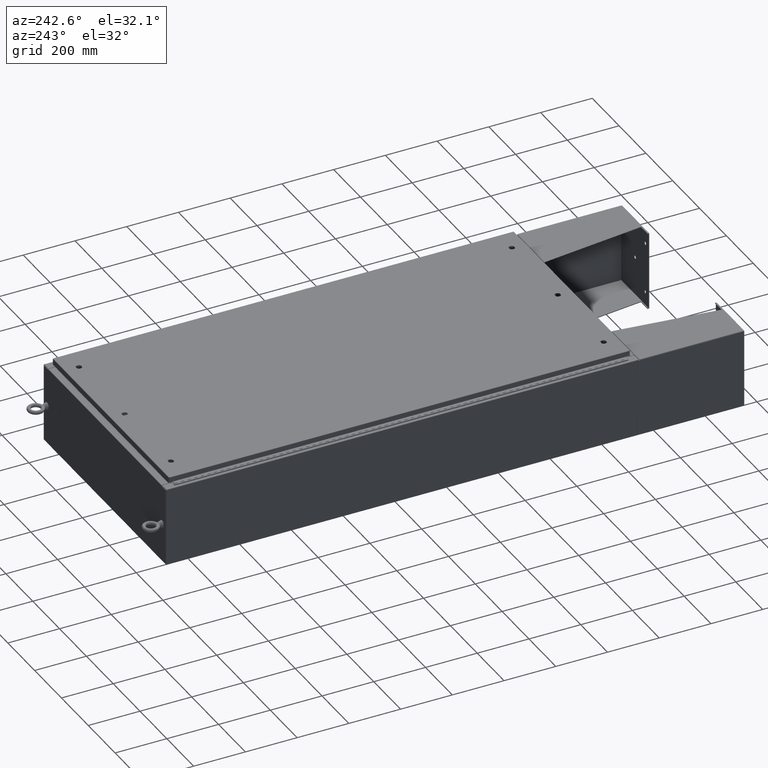
[diagram: clean part render]
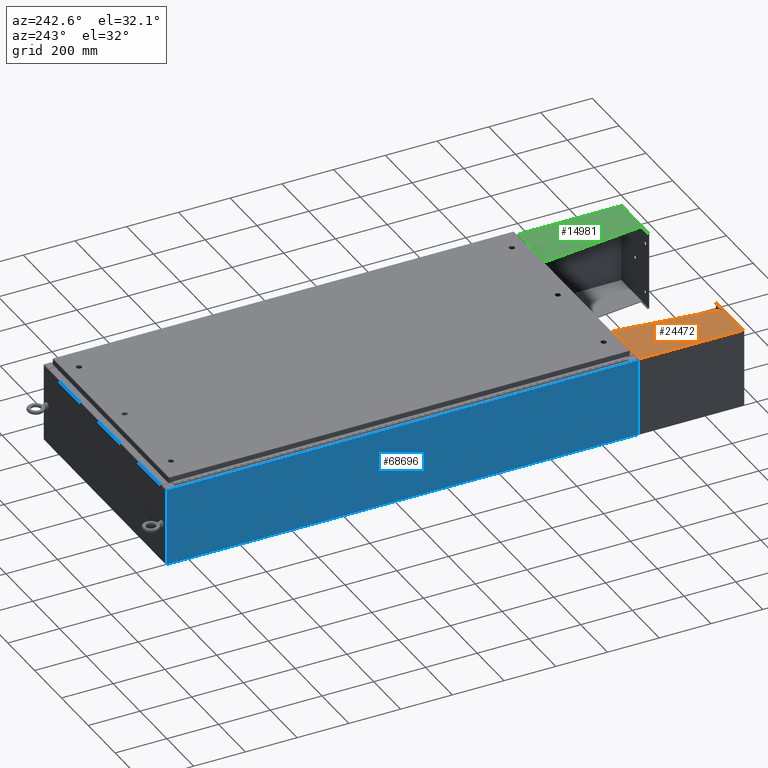
[diagram: same view with three faces highlighted in distinct colors, each labeled with its STEP entity id]
A machine part, auxiliary view with three faces highlighted in distinct colors.
Their STEP definitions:

[orange] entity #24472 — the highlighted planar face has unit normal (0, 0, -1).
#172 = CARTESIAN_POINT ( 'NONE',  ( -6.000000000000023100, -7.749999999999999100, 6.052216497445934700 ) ) ;
#946 = CARTESIAN_POINT ( 'NONE',  ( -6.000000000000000900, -7.999999999999999100, 0.03899999999999923000 ) ) ;
#2053 = CARTESIAN_POINT ( 'NONE',  ( -6.000000000000030200, -7.999999999999999100, 8.000999999999999400 ) ) ;
#2593 = VECTOR ( 'NONE', #42713, 39.37007874015748100 ) ;
#5008 = PLANE ( 'NONE',  #21937 ) ;
#5889 = DIRECTION ( 'NONE',  ( 3.550958521948298200E-015, 0.0000000000000000000, -1.000000000000000000 ) ) ;
#9002 = FACE_OUTER_BOUND ( 'NONE', #70828, .T. ) ;
#9103 = LINE ( 'NONE', #37857, #49069 ) ;
#9599 = LINE ( 'NONE', #41184, #66013 ) ;
#10144 = CARTESIAN_POINT ( 'NONE',  ( -6.000000000000016000, 7.857000000000001100, 8.000999999999999400 ) ) ;
#12588 = VERTEX_POINT ( 'NONE', #70254 ) ;
#21937 = AXIS2_PLACEMENT_3D ( 'NONE', #42693, #50079, #42826 ) ;
#22171 = LINE ( 'NONE', #38445, #63974 ) ;
#22920 = CARTESIAN_POINT ( 'NONE',  ( -6.000000000000016000, 7.857000000000001100, 0.03900000000000031900 ) ) ;
#24472 = ADVANCED_FACE ( 'NONE', ( #9002 ), #5008, .F. ) ;
#25146 = EDGE_CURVE ( 'NONE', #29481, #12588, #43772, .T. ) ;
#25249 = CARTESIAN_POINT ( 'NONE',  ( -6.000000000000030200, -7.999999999999999100, 8.000999999999999400 ) ) ;
#25416 = VERTEX_POINT ( 'NONE', #2053 ) ;
#25813 = ORIENTED_EDGE ( 'NONE', *, *, #39104, .T. ) ;
#26026 = EDGE_CURVE ( 'NONE', #67930, #69640, #9599, .T. ) ;
#29426 = VECTOR ( 'NONE', #68056, 39.37007874015748100 ) ;
#29481 = VERTEX_POINT ( 'NONE', #59057 ) ;
#31614 = LINE ( 'NONE', #10144, #2593 ) ;
#33163 = CARTESIAN_POINT ( 'NONE',  ( -6.000000000000030200, -7.750000000000000000, 8.001000000000015400 ) ) ;
#35772 = EDGE_CURVE ( 'NONE', #67930, #25416, #44703, .T. ) ;
#36719 = ORIENTED_EDGE ( 'NONE', *, *, #25146, .T. ) ;
#37857 = CARTESIAN_POINT ( 'NONE',  ( -6.000000000000030200, 8.000000000000001800, 8.000999999999999400 ) ) ;
#38445 = CARTESIAN_POINT ( 'NONE',  ( -6.000000000000030200, -7.750000000000000000, 8.000999999999999400 ) ) ;
#39104 = EDGE_CURVE ( 'NONE', #12588, #69640, #31614, .T. ) ;
#41184 = CARTESIAN_POINT ( 'NONE',  ( -6.000000000000000900, 8.000000000000001800, 0.03899999999999923000 ) ) ;
#41858 = ORIENTED_EDGE ( 'NONE', *, *, #26026, .F. ) ;
#42693 = CARTESIAN_POINT ( 'NONE',  ( -6.000000000000030200, 8.000000000000001800, 8.000999999999999400 ) ) ;
#42713 = DIRECTION ( 'NONE',  ( 0.0000000000000000000, 0.0000000000000000000, -1.000000000000000000 ) ) ;
#42826 = DIRECTION ( 'NONE',  ( 3.550958521948298200E-015, 0.0000000000000000000, -1.000000000000000000 ) ) ;
#43300 = DIRECTION ( 'NONE',  ( 0.0000000000000000000, 1.000000000000000000, 0.0000000000000000000 ) ) ;
#43772 = LINE ( 'NONE', #172, #29426 ) ;
#44703 = LINE ( 'NONE', #25249, #57552 ) ;
#46062 = ORIENTED_EDGE ( 'NONE', *, *, #63044, .T. ) ;
#46409 = VERTEX_POINT ( 'NONE', #33163 ) ;
#48659 = DIRECTION ( 'NONE',  ( 0.0000000000000000000, 1.000000000000000000, 0.0000000000000000000 ) ) ;
#49069 = VECTOR ( 'NONE', #43300, 39.37007874015748100 ) ;
#50079 = DIRECTION ( 'NONE',  ( 1.000000000000000000, 0.0000000000000000000, 3.550958521948298200E-015 ) ) ;
#57552 = VECTOR ( 'NONE', #68962, 39.37007874015748100 ) ;
#59057 = CARTESIAN_POINT ( 'NONE',  ( -6.000000000000022200, -7.750000000000000000, 6.052216497445934700 ) ) ;
#62468 = ORIENTED_EDGE ( 'NONE', *, *, #35772, .T. ) ;
#63044 = EDGE_CURVE ( 'NONE', #46409, #29481, #22171, .T. ) ;
#63974 = VECTOR ( 'NONE', #5889, 39.37007874015748100 ) ;
#66013 = VECTOR ( 'NONE', #48659, 39.37007874015748100 ) ;
#67759 = EDGE_CURVE ( 'NONE', #25416, #46409, #9103, .T. ) ;
#67930 = VERTEX_POINT ( 'NONE', #946 ) ;
#68056 = DIRECTION ( 'NONE',  ( -4.399772607369798900E-016, 0.9922942345449394800, 0.1239038017531047700 ) ) ;
#68962 = DIRECTION ( 'NONE',  ( -3.550958521948298200E-015, 0.0000000000000000000, 1.000000000000000000 ) ) ;
#69399 = ORIENTED_EDGE ( 'NONE', *, *, #67759, .T. ) ;
#69640 = VERTEX_POINT ( 'NONE', #22920 ) ;
#70254 = CARTESIAN_POINT ( 'NONE',  ( -6.000000000000030200, 7.857000000000001100, 8.000999999999999400 ) ) ;
#70828 = EDGE_LOOP ( 'NONE', ( #46062, #36719, #25813, #41858, #62468, #69399 ) ) ;

[blue] entity #68696 — the highlighted planar face has unit normal (1, 0, 0).
#2729 = LINE ( 'NONE', #30103, #56214 ) ;
#5256 = ORIENTED_EDGE ( 'NONE', *, *, #34206, .F. ) ;
#5844 = CARTESIAN_POINT ( 'NONE',  ( -18.00000000000003900, 35.92530000000000000, 11.83760000000000200 ) ) ;
#6572 = EDGE_CURVE ( 'NONE', #23120, #48611, #42454, .T. ) ;
#8956 = FACE_OUTER_BOUND ( 'NONE', #46893, .T. ) ;
#9157 = ORIENTED_EDGE ( 'NONE', *, *, #6572, .T. ) ;
#11156 = LINE ( 'NONE', #59146, #64132 ) ;
#13929 = VERTEX_POINT ( 'NONE', #42421 ) ;
#21098 = DIRECTION ( 'NONE',  ( -0.0000000000000000000, 1.000000000000000000, -0.0000000000000000000 ) ) ;
#23120 = VERTEX_POINT ( 'NONE', #60378 ) ;
#23625 = ORIENTED_EDGE ( 'NONE', *, *, #27895, .T. ) ;
#24278 = CARTESIAN_POINT ( 'NONE',  ( -17.99999999999999600, 0.0000000000000000000, -6.293710784286996200E-014 ) ) ;
#27895 = EDGE_CURVE ( 'NONE', #48611, #47539, #2729, .T. ) ;
#29282 = CARTESIAN_POINT ( 'NONE',  ( -17.99999999999999600, -35.92529999999999300, -6.293710784286996200E-014 ) ) ;
#29734 = DIRECTION ( 'NONE',  ( 1.000000000000000000, 0.0000000000000000000, 3.482016343714355100E-015 ) ) ;
#30103 = CARTESIAN_POINT ( 'NONE',  ( -17.99999999999999600, 35.92530000000000000, -6.293710784286996200E-014 ) ) ;
#34046 = CARTESIAN_POINT ( 'NONE',  ( -18.00000000000003900, -35.92530000000000000, 11.83760000000000200 ) ) ;
#34206 = EDGE_CURVE ( 'NONE', #13929, #47539, #11156, .T. ) ;
#34524 = DIRECTION ( 'NONE',  ( 0.0000000000000000000, 1.000000000000000000, 0.0000000000000000000 ) ) ;
#37465 = AXIS2_PLACEMENT_3D ( 'NONE', #24278, #29734, #67965 ) ;
#42421 = CARTESIAN_POINT ( 'NONE',  ( -17.99999999999999600, -35.92530000000000000, 0.01299999999999984700 ) ) ;
#42454 = LINE ( 'NONE', #34046, #70047 ) ;
#43155 = LINE ( 'NONE', #29282, #44827 ) ;
#44827 = VECTOR ( 'NONE', #67534, 39.37007874015748100 ) ;
#46893 = EDGE_LOOP ( 'NONE', ( #9157, #23625, #5256, #59261 ) ) ;
#47539 = VERTEX_POINT ( 'NONE', #66928 ) ;
#48611 = VERTEX_POINT ( 'NONE', #5844 ) ;
#56214 = VECTOR ( 'NONE', #68365, 39.37007874015748100 ) ;
#56799 = PLANE ( 'NONE',  #37465 ) ;
#59146 = CARTESIAN_POINT ( 'NONE',  ( -17.99999999999999600, 35.92530000000000000, 0.01299999999999984700 ) ) ;
#59261 = ORIENTED_EDGE ( 'NONE', *, *, #64164, .T. ) ;
#60378 = CARTESIAN_POINT ( 'NONE',  ( -18.00000000000003900, -35.92530000000000000, 11.83760000000000200 ) ) ;
#64132 = VECTOR ( 'NONE', #21098, 39.37007874015748100 ) ;
#64164 = EDGE_CURVE ( 'NONE', #13929, #23120, #43155, .T. ) ;
#66928 = CARTESIAN_POINT ( 'NONE',  ( -17.99999999999999600, 35.92530000000000000, 0.01299999999999984700 ) ) ;
#67534 = DIRECTION ( 'NONE',  ( -3.482016343714355500E-015, 0.0000000000000000000, 1.000000000000000000 ) ) ;
#67965 = DIRECTION ( 'NONE',  ( 3.482016343714355100E-015, 0.0000000000000000000, -1.000000000000000000 ) ) ;
#68365 = DIRECTION ( 'NONE',  ( 3.482016343714355500E-015, 0.0000000000000000000, -1.000000000000000000 ) ) ;
#68696 = ADVANCED_FACE ( 'NONE', ( #8956 ), #56799, .F. ) ;
#70047 = VECTOR ( 'NONE', #34524, 39.37007874015748100 ) ;

[green] entity #14981 — the highlighted planar face has unit normal (-0, -0, -1).
#1081 = VECTOR ( 'NONE', #39198, 39.37007874015748100 ) ;
#1316 = CARTESIAN_POINT ( 'NONE',  ( 6.000000000000021300, -7.749999999999999100, 6.052216497445950700 ) ) ;
#2819 = ORIENTED_EDGE ( 'NONE', *, *, #34423, .T. ) ;
#4069 = VECTOR ( 'NONE', #70594, 39.37007874015748100 ) ;
#5279 = FACE_OUTER_BOUND ( 'NONE', #36671, .T. ) ;
#5655 = CARTESIAN_POINT ( 'NONE',  ( 6.000000000000029300, -7.749999999999999100, 8.001000000000015400 ) ) ;
#6761 = DIRECTION ( 'NONE',  ( -3.550958521948298200E-015, 0.0000000000000000000, -1.000000000000000000 ) ) ;
#7115 = ORIENTED_EDGE ( 'NONE', *, *, #11808, .F. ) ;
#9945 = AXIS2_PLACEMENT_3D ( 'NONE', #45981, #26363, #43122 ) ;
#10458 = VERTEX_POINT ( 'NONE', #58846 ) ;
#10926 = DIRECTION ( 'NONE',  ( -0.0000000000000000000, -1.000000000000000000, 0.0000000000000000000 ) ) ;
#11756 = DIRECTION ( 'NONE',  ( 4.399772607369798900E-016, 0.9922942345449394800, 0.1239038017531047700 ) ) ;
#11808 = EDGE_CURVE ( 'NONE', #70329, #14766, #43708, .T. ) ;
#12055 = VERTEX_POINT ( 'NONE', #42371 ) ;
#12379 = EDGE_CURVE ( 'NONE', #62769, #14766, #30122, .T. ) ;
#12761 = CARTESIAN_POINT ( 'NONE',  ( 6.000000000000029300, -7.749999999999999100, 8.001000000000031400 ) ) ;
#14766 = VERTEX_POINT ( 'NONE', #59409 ) ;
#14981 = ADVANCED_FACE ( 'NONE', ( #5279 ), #34007, .F. ) ;
#15047 = LINE ( 'NONE', #55504, #29608 ) ;
#15128 = VECTOR ( 'NONE', #54907, 39.37007874015748100 ) ;
#16903 = CARTESIAN_POINT ( 'NONE',  ( 6.000000000000013300, 7.857000000000001100, 0.03900000000001561900 ) ) ;
#17073 = LINE ( 'NONE', #70021, #44277 ) ;
#17080 = EDGE_CURVE ( 'NONE', #37638, #70329, #58594, .T. ) ;
#18838 = ORIENTED_EDGE ( 'NONE', *, *, #17080, .F. ) ;
#26363 = DIRECTION ( 'NONE',  ( -1.000000000000000000, 0.0000000000000000000, 3.550958521948298200E-015 ) ) ;
#29608 = VECTOR ( 'NONE', #6761, 39.37007874015748100 ) ;
#30122 = LINE ( 'NONE', #16903, #1081 ) ;
#31354 = LINE ( 'NONE', #32299, #4069 ) ;
#32299 = CARTESIAN_POINT ( 'NONE',  ( 6.000000000000029300, -7.999999999999999100, 8.001000000000015400 ) ) ;
#32776 = ORIENTED_EDGE ( 'NONE', *, *, #43284, .T. ) ;
#34007 = PLANE ( 'NONE',  #9945 ) ;
#34423 = EDGE_CURVE ( 'NONE', #10458, #12055, #15047, .T. ) ;
#36671 = EDGE_LOOP ( 'NONE', ( #18838, #32776, #2819, #61645, #39387, #7115 ) ) ;
#37638 = VERTEX_POINT ( 'NONE', #12761 ) ;
#39198 = DIRECTION ( 'NONE',  ( 0.0000000000000000000, 0.0000000000000000000, 1.000000000000000000 ) ) ;
#39387 = ORIENTED_EDGE ( 'NONE', *, *, #12379, .T. ) ;
#42371 = CARTESIAN_POINT ( 'NONE',  ( 6.000000000000000900, -7.999999999999993800, 0.03899999999999890400 ) ) ;
#43122 = DIRECTION ( 'NONE',  ( 3.550958521948298200E-015, 0.0000000000000000000, 1.000000000000000000 ) ) ;
#43284 = EDGE_CURVE ( 'NONE', #37638, #10458, #31354, .T. ) ;
#43708 = LINE ( 'NONE', #64932, #69576 ) ;
#44277 = VECTOR ( 'NONE', #10926, 39.37007874015748100 ) ;
#45981 = CARTESIAN_POINT ( 'NONE',  ( 6.000000000000029300, -7.999999999999999100, 8.001000000000015400 ) ) ;
#54907 = DIRECTION ( 'NONE',  ( -3.550958521948298200E-015, -0.0000000000000000000, -1.000000000000000000 ) ) ;
#55504 = CARTESIAN_POINT ( 'NONE',  ( 6.000000000000029300, -7.999999999999999100, 8.001000000000015400 ) ) ;
#58035 = CARTESIAN_POINT ( 'NONE',  ( 6.000000000000013300, 7.857000000000001100, 0.03900000000001453000 ) ) ;
#58594 = LINE ( 'NONE', #5655, #15128 ) ;
#58846 = CARTESIAN_POINT ( 'NONE',  ( 6.000000000000029300, -7.999999999999999100, 8.001000000000015400 ) ) ;
#59409 = CARTESIAN_POINT ( 'NONE',  ( 6.000000000000013300, 7.857000000000001100, 8.001000000000013700 ) ) ;
#61480 = EDGE_CURVE ( 'NONE', #62769, #12055, #17073, .T. ) ;
#61645 = ORIENTED_EDGE ( 'NONE', *, *, #61480, .F. ) ;
#62769 = VERTEX_POINT ( 'NONE', #58035 ) ;
#64932 = CARTESIAN_POINT ( 'NONE',  ( 6.000000000000022200, -7.749999999999999100, 6.052216497445950700 ) ) ;
#69576 = VECTOR ( 'NONE', #11756, 39.37007874015748100 ) ;
#70021 = CARTESIAN_POINT ( 'NONE',  ( 5.999999999999999100, -7.999999999999999100, 0.03900000000001453000 ) ) ;
#70329 = VERTEX_POINT ( 'NONE', #1316 ) ;
#70594 = DIRECTION ( 'NONE',  ( 0.0000000000000000000, -1.000000000000000000, 0.0000000000000000000 ) ) ;